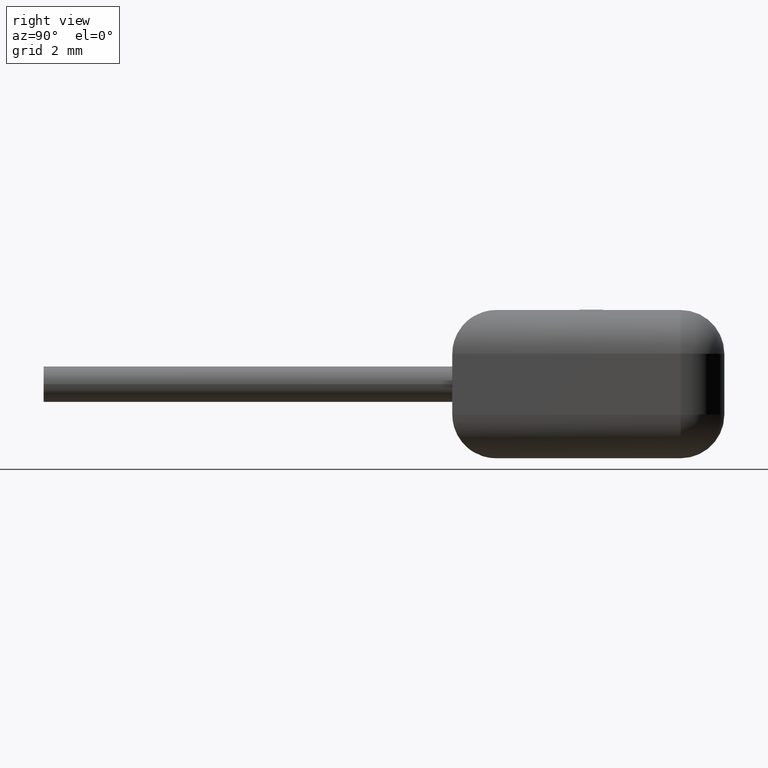
[diagram: clean part render]
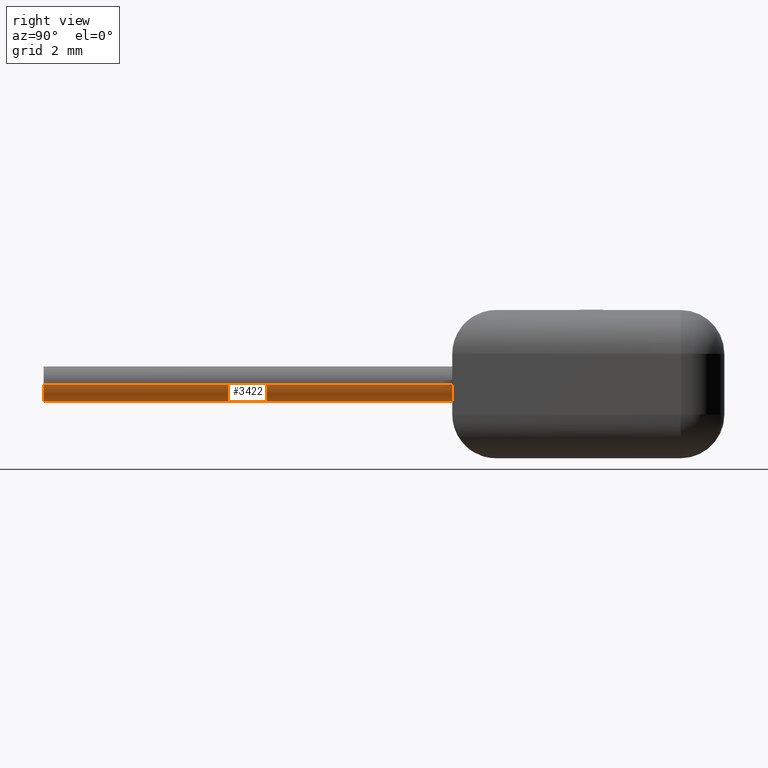
[diagram: same view with one face highlighted and labeled with its STEP entity id]
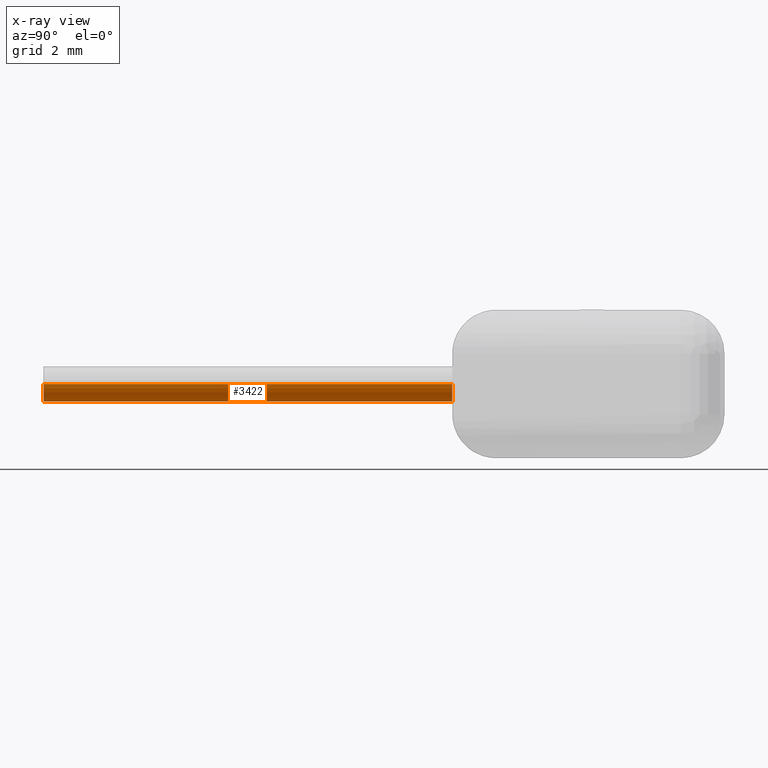
[diagram: x-ray of the same camera — body ghosted, the highlighted face saturated]
A machine part, right view. The second image highlights one B-rep face of the part: STEP entity #3422.
The next image is the same camera in x-ray: the body ghosted, the highlighted face saturated — about 0% of this face is hidden behind the body in this view.
In plain terms, the highlighted cylindrical surface (edge-blend (fillet) strip) has radius 0.305 mm, axis along (0, 1, -0).
Its self-contained STEP definition (entity closure, byte-faithful):
#86 = AXIS2_PLACEMENT_3D ( 'NONE', #3324, #3612, #3310 ) ;
#120 = CARTESIAN_POINT ( 'NONE',  ( -0.9399999999999993900, -3.514736313552903100E-016, 1.270000000000000000 ) ) ;
#218 = CARTESIAN_POINT ( 'NONE',  ( -0.6349999999999992300, -3.888253587292846100E-016, 1.270000000000000000 ) ) ;
#279 = CYLINDRICAL_SURFACE ( 'NONE', #86, 0.3050000000000001600 ) ;
#417 = ORIENTED_EDGE ( 'NONE', *, *, #922, .T. ) ;
#502 = EDGE_CURVE ( 'NONE', #2997, #2991, #2916, .T. ) ;
#568 = CARTESIAN_POINT ( 'NONE',  ( -0.3300000000000000200, -7.000000000000000000, 1.270000000000000000 ) ) ;
#737 = VERTEX_POINT ( 'NONE', #120 ) ;
#822 = EDGE_LOOP ( 'NONE', ( #1003, #417, #999, #949 ) ) ;
#840 = EDGE_CURVE ( 'NONE', #3105, #737, #1062, .T. ) ;
#865 = DIRECTION ( 'NONE',  ( -1.000000000000000000, 0.0000000000000000000, 0.0000000000000000000 ) ) ;
#922 = EDGE_CURVE ( 'NONE', #2997, #3105, #2239, .T. ) ;
#949 = ORIENTED_EDGE ( 'NONE', *, *, #3692, .F. ) ;
#999 = ORIENTED_EDGE ( 'NONE', *, *, #840, .T. ) ;
#1003 = ORIENTED_EDGE ( 'NONE', *, *, #502, .F. ) ;
#1010 = CARTESIAN_POINT ( 'NONE',  ( -0.3300000000000000200, -7.000000000000000000, 1.270000000000000000 ) ) ;
#1029 = AXIS2_PLACEMENT_3D ( 'NONE', #3428, #2883, #865 ) ;
#1062 = LINE ( 'NONE', #2457, #2645 ) ;
#1099 = DIRECTION ( 'NONE',  ( 1.224646799147353200E-016, 1.000000000000000000, -0.0000000000000000000 ) ) ;
#1103 = CARTESIAN_POINT ( 'NONE',  ( -0.3299999999999991800, -4.261770861032789100E-016, 1.270000000000000000 ) ) ;
#1172 = AXIS2_PLACEMENT_3D ( 'NONE', #218, #1099, #2243 ) ;
#1218 = CIRCLE ( 'NONE', #1172, 0.3050000000000001600 ) ;
#1431 = CARTESIAN_POINT ( 'NONE',  ( -0.9400000000000002800, -7.000000000000000000, 1.270000000000000000 ) ) ;
#1729 = FACE_OUTER_BOUND ( 'NONE', #822, .T. ) ;
#1733 = DIRECTION ( 'NONE',  ( 1.224646799147353200E-016, 1.000000000000000000, -0.0000000000000000000 ) ) ;
#1842 = VECTOR ( 'NONE', #1733, 1000.000000000000000 ) ;
#2239 = CIRCLE ( 'NONE', #1029, 0.3050000000000001600 ) ;
#2243 = DIRECTION ( 'NONE',  ( -1.000000000000000000, 1.224646799147353900E-016, 0.0000000000000000000 ) ) ;
#2457 = CARTESIAN_POINT ( 'NONE',  ( -0.9400000000000002800, -7.000000000000000000, 1.270000000000000000 ) ) ;
#2566 = DIRECTION ( 'NONE',  ( 1.224646799147353200E-016, 1.000000000000000000, -0.0000000000000000000 ) ) ;
#2645 = VECTOR ( 'NONE', #2566, 1000.000000000000000 ) ;
#2883 = DIRECTION ( 'NONE',  ( 1.224646799147353200E-016, 1.000000000000000000, -0.0000000000000000000 ) ) ;
#2916 = LINE ( 'NONE', #568, #1842 ) ;
#2991 = VERTEX_POINT ( 'NONE', #1103 ) ;
#2997 = VERTEX_POINT ( 'NONE', #1010 ) ;
#3105 = VERTEX_POINT ( 'NONE', #1431 ) ;
#3310 = DIRECTION ( 'NONE',  ( -1.000000000000000000, 0.0000000000000000000, 0.0000000000000000000 ) ) ;
#3324 = CARTESIAN_POINT ( 'NONE',  ( -0.6350000000000001200, -7.000000000000000000, 1.270000000000000000 ) ) ;
#3422 = ADVANCED_FACE ( 'NONE', ( #1729 ), #279, .T. ) ;
#3428 = CARTESIAN_POINT ( 'NONE',  ( -0.6350000000000001200, -7.000000000000000000, 1.270000000000000000 ) ) ;
#3612 = DIRECTION ( 'NONE',  ( 1.224646799147353200E-016, 1.000000000000000000, -0.0000000000000000000 ) ) ;
#3692 = EDGE_CURVE ( 'NONE', #2991, #737, #1218, .T. ) ;